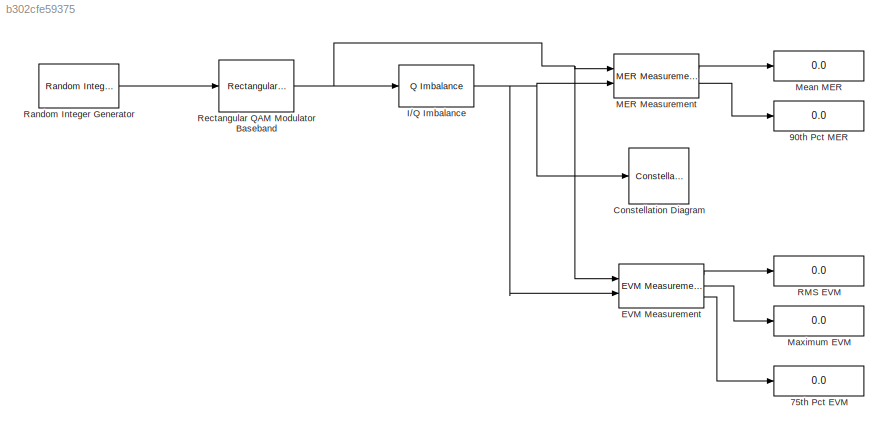
MODEL slx_b302cfe59375
KIND model
CONFIG PostLoadFcn = qamRefConst = [-3.00000000000000 + 3.00000000000000i\n-3.00000000000000 + 1.00000000000000i\n-3.00000000000000 - 1.00000000000000i\n-3.00000000000000 - 3.00000000000000i\n-1.00000000000000 + 3.00000000000000i\n-1.00000000000000 + 1.00000000000000i\n-1.00000000000000 - 1.00000000000000i\n-1.00000000000000 - 3.00000000000000i\n1.00000000000000 + 3.00000000000000i\n1.00000000000000 + 1.00000000000000i\n1.00000...<+216ch>
BLOCK [Display] 75th Pct EVM
  Decimation = 1
  Ports = [1]
BLOCK [Display] 90th Pct MER
  Decimation = 1
  Ports = [1]
BLOCK [ConstellationDiagram] Constellation Diagram
  Ports = [1]
BLOCK [Reference] EVM Measurement  REF=commutil2/EVM Measurement
  Ports = [2, 3]
  SourceBlock = commutil2/EVM Measurement
  SourceType = EVM Measurement
  averagePower = 1
  maxOrMinOut = on
  nSym = off
  normMethod = Average reference signal power
  peakPower = 1
  percentileOut = on
  percentileVal = 75
BLOCK [Reference] I//Q Imbalance  REF=commrflib2/I//Q
Imbalance
  Idc = 0
  Ports = [1, 1]
  Qdc = 0
  SourceBlock = commrflib2/I//Q\nImbalance
  SourceType = I/Q Imbalance
  ampImbal = 1
  phsImbal = 15
BLOCK [Reference] MER Measurement  REF=commutil2/MER Measurement
  Ports = [2, 2]
  SourceBlock = commutil2/MER Measurement
  SourceType = MER Measurement
  maxOrMinOut = off
  nSym = off
  percentileOut = on
  percentileVal = 90
BLOCK [Display] Maximum EVM
  Decimation = 1
  Ports = [1]
BLOCK [Display] Mean MER
  Decimation = 1
  Ports = [1]
BLOCK [Display] RMS EVM
  Decimation = 1
  Ports = [1]
BLOCK [Reference] Random Integer Generator  REF=commrandsrc2/Random Integer
Generator
  Ports = [0, 1]
  SourceBlock = commrandsrc2/Random Integer\nGenerator
  SourceType = Random Integer Generator
  Ts = 0.001
  frameBased = on
  mul = 16
  orient = off
  outDataType = double
  sampPerFrame = 1000
  seed = 37
BLOCK [Reference] Rectangular QAM Modulator Baseband  REF=commdigbbndam3/Rectangular QAM
Modulator
Baseband
  AvgPow = 1
  Enc = Gray
  InType = Integer
  M = 16
  Mapping = [0:15]
  MinDist = 2
  PeakPow = 1
  Ph = 0
  Ports = [1, 1]
  PowType = Min. distance between symbols
  SourceBlock = commdigbbndam3/Rectangular QAM\nModulator\nBaseband
  SourceType = Rectangular QAM Modulator Baseband
  outDtype = double
  outFracLen = 15
  outFracLenMode = Best precision
  outUDDataType = sfix(16)
  outWordLen = 16
LINE EVM Measurement:1 -> RMS EVM:1
LINE EVM Measurement:2 -> Maximum EVM:1
LINE EVM Measurement:3 -> 75th Pct EVM:1
NET I//Q Imbalance:1 -> Constellation Diagram:1, EVM Measurement:2, MER Measurement:2
LINE MER Measurement:1 -> Mean MER:1
LINE MER Measurement:2 -> 90th Pct MER:1
LINE Random Integer Generator:1 -> Rectangular QAM Modulator Baseband:1
NET Rectangular QAM Modulator Baseband:1 -> EVM Measurement:1, I//Q Imbalance:1, MER Measurement:1
note: NET lines group one-source signal fan-out (src -> all destinations, sorted); 1:1 wires keep LINE
